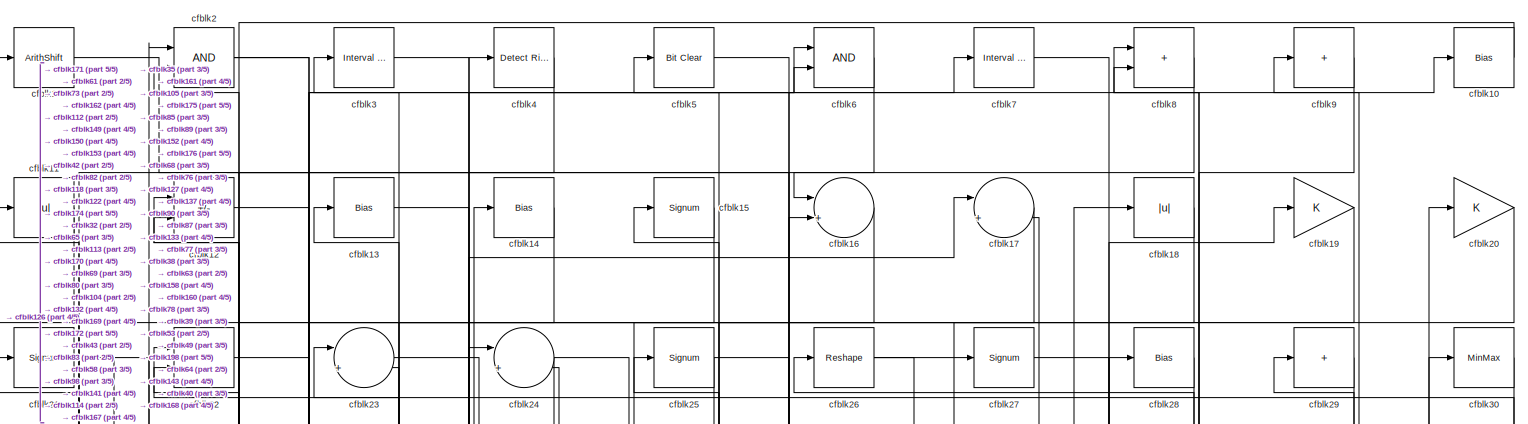
[diagram: root canvas - part 1/5, full width, top band]
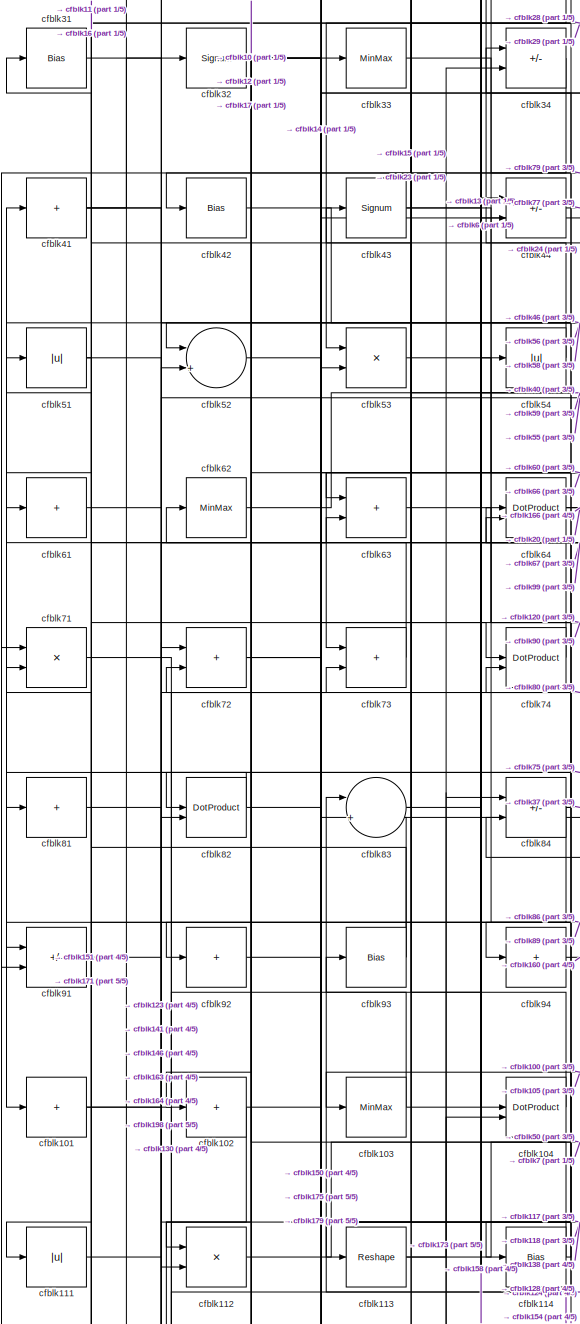
[diagram: root canvas - part 2/5, middle left region]
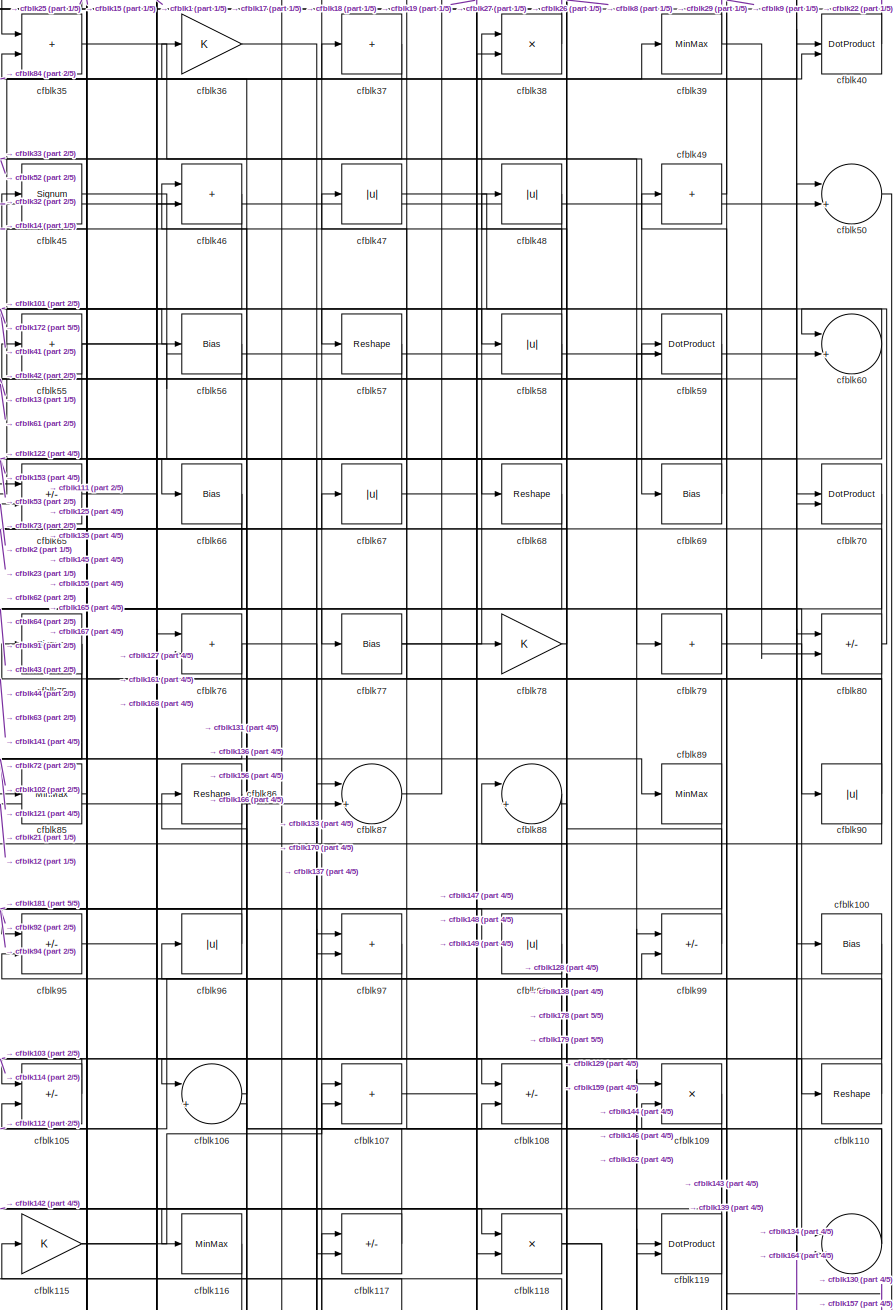
[diagram: root canvas - part 3/5, middle right region]
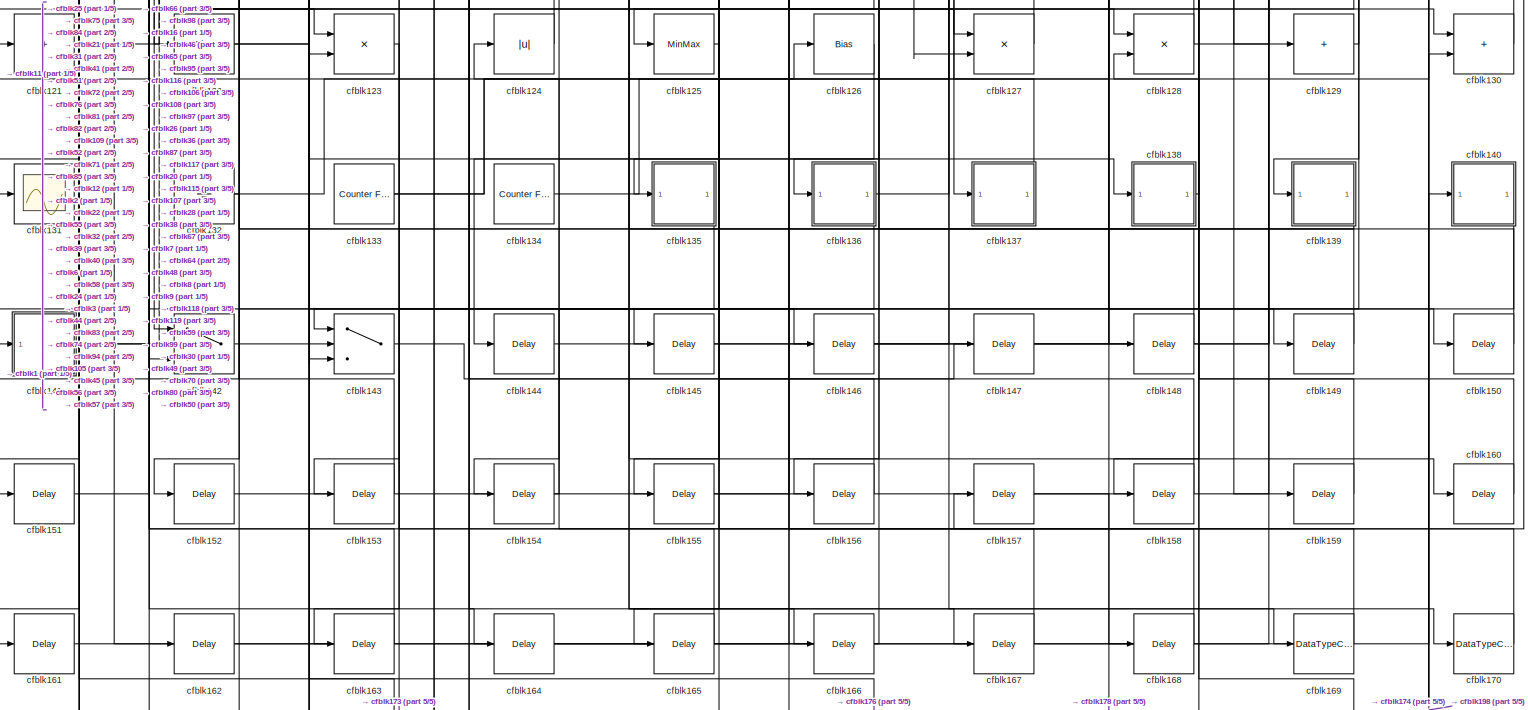
[diagram: root canvas - part 4/5, full width, bottom band]
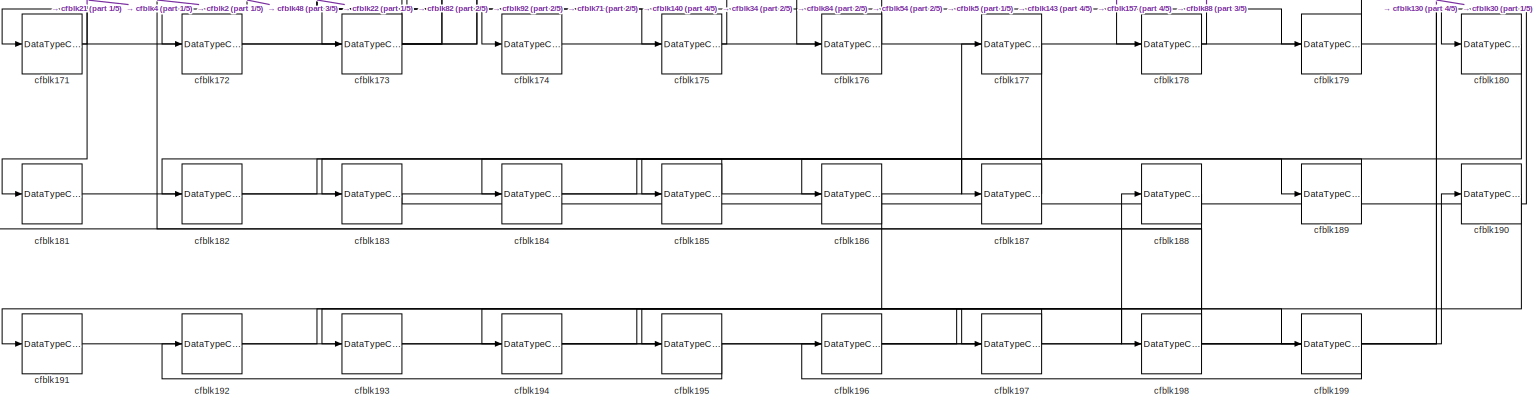
[diagram: root canvas - part 5/5, full width, bottom band]
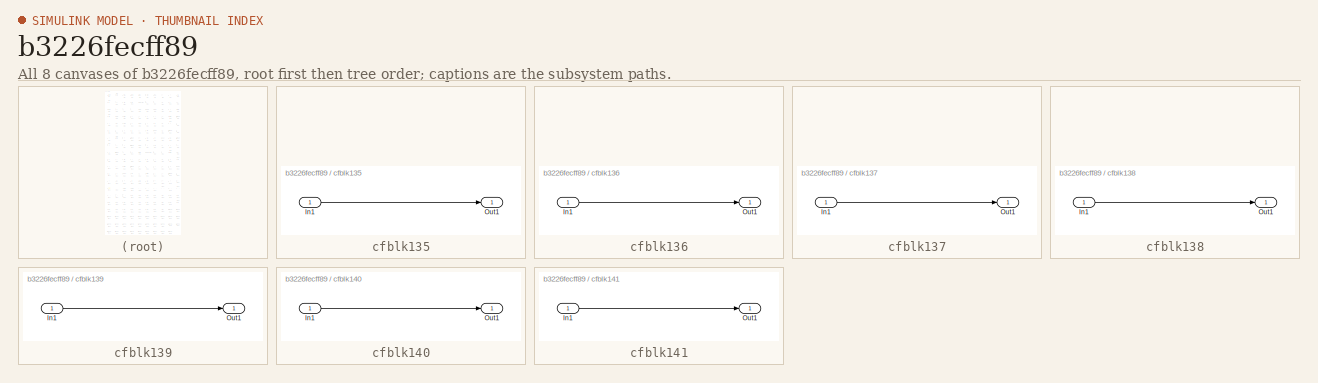
[diagram: thumbnail index - all 8 canvases of the model, root first then tree order]
MODEL slx_b3226fecff89
KIND model
CONFIG AbsTol = auto
CONFIG EnableMultiTasking = off
CONFIG FixedStep = auto
CONFIG MaxStep = auto
CONFIG MinStep = auto
CONFIG RelTol = 1e-3
CONFIG SampleTimeConstraint = Unconstrained
CONFIG SolverName = VariableStepAuto
CONFIG StartTime = 0.0
CONFIG StopTime = 10.0
BLOCK [ArithShift] cfblk1
  BitShiftNumber = 8
  InputPortMap = u0
BLOCK [Bias] cfblk10
  Bias = 0.0
  SaturateOnIntegerOverflow = off
BLOCK [Bias] cfblk100
  Bias = 0.0
  SaturateOnIntegerOverflow = off
BLOCK [Sum] cfblk101
  IconShape = rectangular
  Inputs = +
BLOCK [Sum] cfblk102
  IconShape = rectangular
  Inputs = +
BLOCK [MinMax] cfblk103
BLOCK [DotProduct] cfblk104
  OutDataTypeStr = Inherit: Inherit via internal rule
BLOCK [Sum] cfblk105
  IconShape = rectangular
  Inputs = +-
BLOCK [Sum] cfblk106
  Inputs = |++
BLOCK [Sum] cfblk107
  IconShape = rectangular
BLOCK [Sum] cfblk108
  IconShape = rectangular
  Inputs = +-
BLOCK [Product] cfblk109
  Inputs = */
  RndMeth = Zero
  SaturateOnIntegerOverflow = on
BLOCK [Abs] cfblk11
  SaturateOnIntegerOverflow = off
BLOCK [Reshape] cfblk110
BLOCK [Abs] cfblk111
  SaturateOnIntegerOverflow = off
BLOCK [Product] cfblk112
  Inputs = */
  RndMeth = Zero
  SaturateOnIntegerOverflow = on
BLOCK [Reshape] cfblk113
BLOCK [Bias] cfblk114
  Bias = 0.0
  SaturateOnIntegerOverflow = off
BLOCK [Gain] cfblk115
BLOCK [MinMax] cfblk116
BLOCK [Sum] cfblk117
  IconShape = rectangular
  Inputs = +-
BLOCK [Product] cfblk118
  Inputs = */
  RndMeth = Zero
  SaturateOnIntegerOverflow = on
BLOCK [DotProduct] cfblk119
  OutDataTypeStr = Inherit: Inherit via internal rule
BLOCK [Sum] cfblk12
  IconShape = rectangular
  Inputs = +-
BLOCK [Sum] cfblk120
  Inputs = |++
BLOCK [Sum] cfblk121
  IconShape = rectangular
  Inputs = +
BLOCK [Bias] cfblk122
  Bias = 0.0
  SaturateOnIntegerOverflow = off
BLOCK [Product] cfblk123
  Inputs = */
  RndMeth = Zero
  SaturateOnIntegerOverflow = on
BLOCK [Abs] cfblk124
  SaturateOnIntegerOverflow = off
BLOCK [MinMax] cfblk125
BLOCK [Bias] cfblk126
  Bias = 0.0
  SaturateOnIntegerOverflow = off
BLOCK [Product] cfblk127
  Inputs = */
  RndMeth = Zero
  SaturateOnIntegerOverflow = on
BLOCK [Product] cfblk128
  Inputs = */
  RndMeth = Zero
  SaturateOnIntegerOverflow = on
BLOCK [Sum] cfblk129
  IconShape = rectangular
  Inputs = +
BLOCK [Bias] cfblk13
  Bias = 0.0
  SaturateOnIntegerOverflow = off
BLOCK [Sum] cfblk130
  IconShape = rectangular
BLOCK [Scope] cfblk131
  Floating = off
  NumInputPorts = 1
  ScopeSpecificationString = Simulink.scopes.TimeScopeBlockCfg('CurrentConfiguration', extmgr.ConfigurationSet(extmgr.Configuration('Core','General UI',true),extmgr.Configuration('Core','Source UI',true),extmgr.Configuration('Sources','WiredSimulink',true,'DataLoggingVariableName','ScopeData2','DataLoggingSaveFormat','Array','DataLoggingLimitDataPoints',true,'DataLoggingDecimation','1'),extmgr.Configuration('Visuals','Time Do...<+868ch>
BLOCK [Ground] cfblk132
BLOCK [Reference] cfblk133  REF=hdlsllib/Sources/Counter
Free-Running
  SourceBlock = hdlsllib/Sources/Counter\nFree-Running
  SourceType = Counter Free-Running
BLOCK [Reference] cfblk134  REF=hdlsllib/Sources/Counter
Free-Running
  SourceBlock = hdlsllib/Sources/Counter\nFree-Running
  SourceType = Counter Free-Running
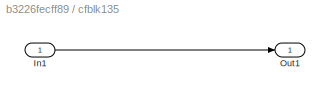
BLOCK [SubSystem] cfblk135
  LibrarySourceBlock = hdlsllib/Ports &\nSubsystems/Subsystem
BLOCK [Inport] cfblk135/In1
BLOCK [Outport] cfblk135/Out1
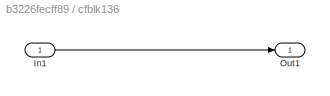
BLOCK [SubSystem] cfblk136
  LibrarySourceBlock = hdlsllib/Ports &\nSubsystems/Subsystem
BLOCK [Inport] cfblk136/In1
BLOCK [Outport] cfblk136/Out1
BLOCK [SubSystem] cfblk137
  LibrarySourceBlock = hdlsllib/Ports &\nSubsystems/Subsystem
BLOCK [Inport] cfblk137/In1
BLOCK [Outport] cfblk137/Out1
BLOCK [SubSystem] cfblk138
  LibrarySourceBlock = hdlsllib/Ports &\nSubsystems/Subsystem
BLOCK [Inport] cfblk138/In1
BLOCK [Outport] cfblk138/Out1
BLOCK [SubSystem] cfblk139
  LibrarySourceBlock = hdlsllib/Ports &\nSubsystems/Subsystem
BLOCK [Inport] cfblk139/In1
BLOCK [Outport] cfblk139/Out1
BLOCK [Bias] cfblk14
  Bias = 0.0
  SaturateOnIntegerOverflow = off
BLOCK [SubSystem] cfblk140
  LibrarySourceBlock = hdlsllib/Ports &\nSubsystems/Subsystem
BLOCK [Inport] cfblk140/In1
BLOCK [Outport] cfblk140/Out1
BLOCK [SubSystem] cfblk141
  LibrarySourceBlock = hdlsllib/Ports &\nSubsystems/Subsystem
BLOCK [Inport] cfblk141/In1
BLOCK [Outport] cfblk141/Out1
BLOCK [Switch] cfblk142
  InputSameDT = off
  SaturateOnIntegerOverflow = off
BLOCK [Switch] cfblk143
  InputSameDT = off
  SaturateOnIntegerOverflow = off
BLOCK [Delay] cfblk144
  InputPortMap = u0
  SampleTime = 1
BLOCK [Delay] cfblk145
  InputPortMap = u0
  SampleTime = 1
BLOCK [Delay] cfblk146
  InputPortMap = u0
  SampleTime = 1
BLOCK [Delay] cfblk147
  InputPortMap = u0
  SampleTime = 1
BLOCK [Delay] cfblk148
  InputPortMap = u0
  SampleTime = 1
BLOCK [Delay] cfblk149
  InputPortMap = u0
  SampleTime = 1
BLOCK [Signum] cfblk15
BLOCK [Delay] cfblk150
  InputPortMap = u0
  SampleTime = 1
BLOCK [Delay] cfblk151
  InputPortMap = u0
  SampleTime = 1
BLOCK [Delay] cfblk152
  InputPortMap = u0
  SampleTime = 1
BLOCK [Delay] cfblk153
  InputPortMap = u0
  SampleTime = 1
BLOCK [Delay] cfblk154
  InputPortMap = u0
  SampleTime = 1
BLOCK [Delay] cfblk155
  InputPortMap = u0
  SampleTime = 1
BLOCK [Delay] cfblk156
  InputPortMap = u0
  SampleTime = 1
BLOCK [Delay] cfblk157
  InputPortMap = u0
  SampleTime = 1
BLOCK [Delay] cfblk158
  InputPortMap = u0
  SampleTime = 1
BLOCK [Delay] cfblk159
  InputPortMap = u0
  SampleTime = 1
BLOCK [Sum] cfblk16
  Inputs = |++
BLOCK [Delay] cfblk160
  InputPortMap = u0
  SampleTime = 1
BLOCK [Delay] cfblk161
  InputPortMap = u0
  SampleTime = 1
BLOCK [Delay] cfblk162
  InputPortMap = u0
  SampleTime = 1
BLOCK [Delay] cfblk163
  InputPortMap = u0
  SampleTime = 1
BLOCK [Delay] cfblk164
  InputPortMap = u0
  SampleTime = 1
BLOCK [Delay] cfblk165
  InputPortMap = u0
  SampleTime = 1
BLOCK [Delay] cfblk166
  InputPortMap = u0
  SampleTime = 1
BLOCK [Delay] cfblk167
  InputPortMap = u0
  SampleTime = 1
BLOCK [Delay] cfblk168
  InputPortMap = u0
  SampleTime = 1
BLOCK [DataTypeConversion] cfblk169
  OutDataTypeStr = uint8
  RndMeth = Floor
  SaturateOnIntegerOverflow = off
BLOCK [Sum] cfblk17
  Inputs = |++
BLOCK [DataTypeConversion] cfblk170
  OutDataTypeStr = uint8
  RndMeth = Floor
  SaturateOnIntegerOverflow = off
BLOCK [DataTypeConversion] cfblk171
  RndMeth = Floor
  SaturateOnIntegerOverflow = off
BLOCK [DataTypeConversion] cfblk172
  OutDataTypeStr = uint8
  RndMeth = Floor
  SaturateOnIntegerOverflow = off
BLOCK [DataTypeConversion] cfblk173
  RndMeth = Floor
  SaturateOnIntegerOverflow = off
BLOCK [DataTypeConversion] cfblk174
  OutDataTypeStr = uint8
  RndMeth = Floor
  SaturateOnIntegerOverflow = off
BLOCK [DataTypeConversion] cfblk175
  OutDataTypeStr = boolean
  RndMeth = Floor
  SaturateOnIntegerOverflow = off
BLOCK [DataTypeConversion] cfblk176
  OutDataTypeStr = uint8
  RndMeth = Floor
  SaturateOnIntegerOverflow = off
BLOCK [DataTypeConversion] cfblk177
  RndMeth = Floor
  SaturateOnIntegerOverflow = off
BLOCK [DataTypeConversion] cfblk178
  OutDataTypeStr = uint8
  RndMeth = Floor
  SaturateOnIntegerOverflow = off
BLOCK [DataTypeConversion] cfblk179
  OutDataTypeStr = uint8
  RndMeth = Floor
  SaturateOnIntegerOverflow = off
BLOCK [Abs] cfblk18
  SaturateOnIntegerOverflow = off
BLOCK [DataTypeConversion] cfblk180
  RndMeth = Floor
  SaturateOnIntegerOverflow = off
BLOCK [DataTypeConversion] cfblk181
  OutDataTypeStr = uint8
  RndMeth = Floor
  SaturateOnIntegerOverflow = off
BLOCK [DataTypeConversion] cfblk182
  RndMeth = Floor
  SaturateOnIntegerOverflow = off
BLOCK [DataTypeConversion] cfblk183
  OutDataTypeStr = uint8
  RndMeth = Floor
  SaturateOnIntegerOverflow = off
BLOCK [DataTypeConversion] cfblk184
  RndMeth = Floor
  SaturateOnIntegerOverflow = off
BLOCK [DataTypeConversion] cfblk185
  OutDataTypeStr = uint8
  RndMeth = Floor
  SaturateOnIntegerOverflow = off
BLOCK [DataTypeConversion] cfblk186
  RndMeth = Floor
  SaturateOnIntegerOverflow = off
BLOCK [DataTypeConversion] cfblk187
  OutDataTypeStr = uint8
  RndMeth = Floor
  SaturateOnIntegerOverflow = off
BLOCK [DataTypeConversion] cfblk188
  RndMeth = Floor
  SaturateOnIntegerOverflow = off
BLOCK [DataTypeConversion] cfblk189
  OutDataTypeStr = uint8
  RndMeth = Floor
  SaturateOnIntegerOverflow = off
BLOCK [Gain] cfblk19
BLOCK [DataTypeConversion] cfblk190
  RndMeth = Floor
  SaturateOnIntegerOverflow = off
BLOCK [DataTypeConversion] cfblk191
  OutDataTypeStr = uint8
  RndMeth = Floor
  SaturateOnIntegerOverflow = off
BLOCK [DataTypeConversion] cfblk192
  RndMeth = Floor
  SaturateOnIntegerOverflow = off
BLOCK [DataTypeConversion] cfblk193
  OutDataTypeStr = uint8
  RndMeth = Floor
  SaturateOnIntegerOverflow = off
BLOCK [DataTypeConversion] cfblk194
  RndMeth = Floor
  SaturateOnIntegerOverflow = off
BLOCK [DataTypeConversion] cfblk195
  OutDataTypeStr = uint8
  RndMeth = Floor
  SaturateOnIntegerOverflow = off
BLOCK [DataTypeConversion] cfblk196
  RndMeth = Floor
  SaturateOnIntegerOverflow = off
BLOCK [DataTypeConversion] cfblk197
  OutDataTypeStr = uint8
  RndMeth = Floor
  SaturateOnIntegerOverflow = off
BLOCK [DataTypeConversion] cfblk198
  RndMeth = Floor
  SaturateOnIntegerOverflow = off
BLOCK [DataTypeConversion] cfblk199
  OutDataTypeStr = uint8
  RndMeth = Floor
  SaturateOnIntegerOverflow = off
BLOCK [Logic] cfblk2
  AllPortsSameDT = off
  OutDataTypeStr = boolean
BLOCK [Gain] cfblk20
BLOCK [Signum] cfblk21
BLOCK [Product] cfblk22
  Inputs = */
  RndMeth = Zero
  SaturateOnIntegerOverflow = on
BLOCK [Sum] cfblk23
  Inputs = |++
BLOCK [Sum] cfblk24
  Inputs = |++
BLOCK [Signum] cfblk25
BLOCK [Reshape] cfblk26
BLOCK [Signum] cfblk27
BLOCK [Bias] cfblk28
  Bias = 0.0
  SaturateOnIntegerOverflow = off
BLOCK [Sum] cfblk29
  IconShape = rectangular
  Inputs = +
BLOCK [Reference] cfblk3  REF=hdlsllib/Logic and Bit
Operations/Interval Test
  SourceBlock = hdlsllib/Logic and Bit\nOperations/Interval Test
  SourceType = Interval Test
BLOCK [MinMax] cfblk30
BLOCK [Bias] cfblk31
  Bias = 0.0
  SaturateOnIntegerOverflow = off
BLOCK [Signum] cfblk32
BLOCK [MinMax] cfblk33
BLOCK [Sum] cfblk34
  IconShape = rectangular
  Inputs = +-
BLOCK [Sum] cfblk35
  IconShape = rectangular
BLOCK [Gain] cfblk36
BLOCK [Sum] cfblk37
  IconShape = rectangular
  Inputs = +
BLOCK [Product] cfblk38
  Inputs = */
  RndMeth = Zero
  SaturateOnIntegerOverflow = on
BLOCK [MinMax] cfblk39
BLOCK [Reference] cfblk4  REF=hdlsllib/Logic and Bit
Operations/Detect Rise
Positive
  SourceBlock = hdlsllib/Logic and Bit\nOperations/Detect Rise\nPositive
  SourceType = Detect Rise Positive
BLOCK [DotProduct] cfblk40
  OutDataTypeStr = Inherit: Inherit via internal rule
BLOCK [Sum] cfblk41
  IconShape = rectangular
  Inputs = +
BLOCK [Bias] cfblk42
  Bias = 0.0
  SaturateOnIntegerOverflow = off
BLOCK [Signum] cfblk43
BLOCK [Sum] cfblk44
  IconShape = rectangular
  Inputs = +-
BLOCK [Signum] cfblk45
BLOCK [Sum] cfblk46
  IconShape = rectangular
BLOCK [Abs] cfblk47
  SaturateOnIntegerOverflow = off
BLOCK [Abs] cfblk48
  SaturateOnIntegerOverflow = off
BLOCK [Sum] cfblk49
  IconShape = rectangular
  Inputs = +
BLOCK [Reference] cfblk5  REF=simulink/Logic and Bit
Operations/Bit Clear
  LibrarySourceBlock = hdlsllib/Logic and Bit\nOperations/Bit Clear
  SourceBlock = simulink/Logic and Bit\nOperations/Bit Clear
  SourceType = Bit Clear
BLOCK [Sum] cfblk50
  Inputs = |++
BLOCK [Abs] cfblk51
  SaturateOnIntegerOverflow = off
BLOCK [Sum] cfblk52
  Inputs = |++
BLOCK [Product] cfblk53
  Inputs = */
  RndMeth = Zero
  SaturateOnIntegerOverflow = on
BLOCK [Abs] cfblk54
  SaturateOnIntegerOverflow = off
BLOCK [Sum] cfblk55
  IconShape = rectangular
  Inputs = +
BLOCK [Bias] cfblk56
  Bias = 0.0
  SaturateOnIntegerOverflow = off
BLOCK [Reshape] cfblk57
BLOCK [Abs] cfblk58
  SaturateOnIntegerOverflow = off
BLOCK [DotProduct] cfblk59
  OutDataTypeStr = Inherit: Inherit via internal rule
BLOCK [Logic] cfblk6
  AllPortsSameDT = off
  OutDataTypeStr = boolean
BLOCK [Sum] cfblk60
  Inputs = |++
BLOCK [Sum] cfblk61
  IconShape = rectangular
  Inputs = +
BLOCK [MinMax] cfblk62
BLOCK [Sum] cfblk63
  IconShape = rectangular
BLOCK [DotProduct] cfblk64
  OutDataTypeStr = Inherit: Inherit via internal rule
BLOCK [Sum] cfblk65
  IconShape = rectangular
  Inputs = +-
BLOCK [Bias] cfblk66
  Bias = 0.0
  SaturateOnIntegerOverflow = off
BLOCK [Abs] cfblk67
  SaturateOnIntegerOverflow = off
BLOCK [Reshape] cfblk68
BLOCK [Bias] cfblk69
  Bias = 0.0
  SaturateOnIntegerOverflow = off
BLOCK [Reference] cfblk7  REF=hdlsllib/Logic and Bit
Operations/Interval Test
  SourceBlock = hdlsllib/Logic and Bit\nOperations/Interval Test
  SourceType = Interval Test
BLOCK [DotProduct] cfblk70
  OutDataTypeStr = Inherit: Inherit via internal rule
BLOCK [Product] cfblk71
  Inputs = */
  RndMeth = Zero
  SaturateOnIntegerOverflow = on
BLOCK [Sum] cfblk72
  IconShape = rectangular
BLOCK [Sum] cfblk73
  IconShape = rectangular
BLOCK [DotProduct] cfblk74
  OutDataTypeStr = Inherit: Inherit via internal rule
BLOCK [Signum] cfblk75
BLOCK [Sum] cfblk76
  IconShape = rectangular
BLOCK [Bias] cfblk77
  Bias = 0.0
  SaturateOnIntegerOverflow = off
BLOCK [Gain] cfblk78
BLOCK [Sum] cfblk79
  IconShape = rectangular
  Inputs = +
BLOCK [Sum] cfblk8
  IconShape = rectangular
BLOCK [Sum] cfblk80
  IconShape = rectangular
  Inputs = +-
BLOCK [Sum] cfblk81
  IconShape = rectangular
  Inputs = +
BLOCK [DotProduct] cfblk82
  OutDataTypeStr = Inherit: Inherit via internal rule
BLOCK [Sum] cfblk83
  Inputs = |++
BLOCK [Sum] cfblk84
  IconShape = rectangular
  Inputs = +-
BLOCK [MinMax] cfblk85
BLOCK [Reshape] cfblk86
BLOCK [Sum] cfblk87
  Inputs = |++
BLOCK [Sum] cfblk88
  Inputs = |++
BLOCK [MinMax] cfblk89
BLOCK [Sum] cfblk9
  IconShape = rectangular
  Inputs = +
BLOCK [Abs] cfblk90
  SaturateOnIntegerOverflow = off
BLOCK [Sum] cfblk91
  IconShape = rectangular
  Inputs = +-
BLOCK [Sum] cfblk92
  IconShape = rectangular
  Inputs = +
BLOCK [Bias] cfblk93
  Bias = 0.0
  SaturateOnIntegerOverflow = off
BLOCK [Sum] cfblk94
  IconShape = rectangular
  Inputs = +
BLOCK [Sum] cfblk95
  IconShape = rectangular
  Inputs = +-
BLOCK [Abs] cfblk96
  SaturateOnIntegerOverflow = off
BLOCK [Sum] cfblk97
  IconShape = rectangular
BLOCK [Abs] cfblk98
  SaturateOnIntegerOverflow = off
BLOCK [Sum] cfblk99
  IconShape = rectangular
  Inputs = +-
LINE cfblk100:1 -> cfblk114:1
NET cfblk101:1 -> cfblk44:2, cfblk63:2
NET cfblk102:1 -> cfblk112:2, cfblk33:1
NET cfblk103:1 -> cfblk59:1, cfblk93:1
LINE cfblk104:1 -> cfblk23:1
LINE cfblk105:1 -> cfblk103:1
LINE cfblk106:1 -> cfblk46:1
LINE cfblk107:1 -> cfblk148:1
NET cfblk108:1 -> cfblk156:1, cfblk35:2
LINE cfblk109:1 -> cfblk142:1
LINE cfblk10:1 -> cfblk42:1
LINE cfblk110:1 -> cfblk96:1
LINE cfblk111:1 -> cfblk73:2
LINE cfblk112:1 -> cfblk50:1
NET cfblk113:1 -> cfblk104:2, cfblk7:1
NET cfblk114:1 -> cfblk12:1, cfblk24:2
NET cfblk115:1 -> cfblk107:1, cfblk99:2
LINE cfblk116:1 -> cfblk131:1
LINE cfblk117:1 -> cfblk86:1
NET cfblk118:1 -> cfblk129:1, cfblk159:1
NET cfblk119:1 -> cfblk143:3, cfblk47:1
LINE cfblk11:1 -> cfblk126:1
NET cfblk120:1 -> cfblk107:2, cfblk64:1
LINE cfblk121:1 -> cfblk85:1
NET cfblk122:1 -> cfblk40:2, cfblk6:1
LINE cfblk123:1 -> cfblk163:1
LINE cfblk124:1 -> cfblk83:1
LINE cfblk125:1 -> cfblk45:1
LINE cfblk126:1 -> cfblk144:1
LINE cfblk127:1 -> cfblk115:1
NET cfblk128:1 -> cfblk119:1, cfblk64:2
LINE cfblk129:1 -> cfblk49:1
LINE cfblk12:1 -> cfblk87:2
LINE cfblk130:1 -> cfblk109:2
NET cfblk132:1 -> cfblk1:1, cfblk24:1
NET cfblk133:1 -> cfblk28:1, cfblk97:1
LINE cfblk134:1 -> cfblk70:2
LINE cfblk135/In1:1 -> cfblk135/Out1:1
LINE cfblk135:1 -> cfblk152:1
LINE cfblk136/In1:1 -> cfblk136/Out1:1
NET cfblk136:1 -> cfblk108:2, cfblk154:1
LINE cfblk137/In1:1 -> cfblk137/Out1:1
LINE cfblk137:1 -> cfblk117:1
LINE cfblk138/In1:1 -> cfblk138/Out1:1
LINE cfblk138:1 -> cfblk48:1
LINE cfblk139/In1:1 -> cfblk139/Out1:1
LINE cfblk139:1 -> cfblk125:1
LINE cfblk13:1 -> cfblk104:1
LINE cfblk140/In1:1 -> cfblk140/Out1:1
LINE cfblk140:1 -> cfblk173:1
LINE cfblk141/In1:1 -> cfblk141/Out1:1
NET cfblk141:1 -> cfblk52:2, cfblk75:1
LINE cfblk142:1 -> cfblk39:1
LINE cfblk143:1 -> cfblk147:1
LINE cfblk144:1 -> cfblk119:2
LINE cfblk145:1 -> cfblk87:1
LINE cfblk146:1 -> cfblk59:2
LINE cfblk147:1 -> cfblk38:2
LINE cfblk148:1 -> cfblk65:1
LINE cfblk149:1 -> cfblk12:2
LINE cfblk14:1 -> cfblk53:2
LINE cfblk150:1 -> cfblk22:2
LINE cfblk151:1 -> cfblk82:2
LINE cfblk152:1 -> cfblk16:2
LINE cfblk153:1 -> cfblk2:2
LINE cfblk154:1 -> cfblk74:2
LINE cfblk155:1 -> cfblk109:1
LINE cfblk156:1 -> cfblk105:2
LINE cfblk157:1 -> cfblk178:1
LINE cfblk158:1 -> cfblk44:1
LINE cfblk159:1 -> cfblk128:2
LINE cfblk15:1 -> cfblk113:1
LINE cfblk160:1 -> cfblk8:2
LINE cfblk161:1 -> cfblk46:2
LINE cfblk162:1 -> cfblk99:1
LINE cfblk163:1 -> cfblk72:1
LINE cfblk164:1 -> cfblk80:1
LINE cfblk165:1 -> cfblk142:2
LINE cfblk166:1 -> cfblk106:2
LINE cfblk167:1 -> cfblk95:2
LINE cfblk168:1 -> cfblk76:1
LINE cfblk169:1 -> cfblk124:1
LINE cfblk16:1 -> cfblk61:1
LINE cfblk170:1 -> cfblk3:1
NET cfblk171:1 -> cfblk21:1, cfblk54:1
LINE cfblk172:1 -> cfblk4:1
NET cfblk173:1 -> cfblk34:2, cfblk71:2, cfblk84:1
LINE cfblk174:1 -> cfblk140:1
LINE cfblk175:1 -> cfblk5:1
LINE cfblk176:1 -> cfblk143:2
LINE cfblk177:1 -> cfblk183:1
LINE cfblk178:1 -> cfblk88:1
LINE cfblk179:1 -> cfblk88:2
LINE cfblk17:1 -> cfblk112:1
LINE cfblk180:1 -> cfblk185:1
LINE cfblk181:1 -> cfblk177:1
LINE cfblk182:1 -> cfblk187:1
LINE cfblk183:1 -> cfblk180:1
LINE cfblk184:1 -> cfblk189:1
LINE cfblk185:1 -> cfblk182:1
LINE cfblk186:1 -> cfblk191:1
LINE cfblk187:1 -> cfblk184:1
LINE cfblk188:1 -> cfblk193:1
LINE cfblk189:1 -> cfblk186:1
LINE cfblk18:1 -> cfblk105:1
LINE cfblk190:1 -> cfblk195:1
LINE cfblk191:1 -> cfblk188:1
LINE cfblk192:1 -> cfblk197:1
LINE cfblk193:1 -> cfblk190:1
LINE cfblk194:1 -> cfblk199:1
LINE cfblk195:1 -> cfblk192:1
LINE cfblk196:1 -> cfblk198:1
LINE cfblk197:1 -> cfblk194:1
NET cfblk198:1 -> cfblk130:2, cfblk2:1, cfblk30:1, cfblk71:1
LINE cfblk199:1 -> cfblk196:1
LINE cfblk19:1 -> cfblk35:1
LINE cfblk1:1 -> cfblk76:2
LINE cfblk20:1 -> cfblk137:1
NET cfblk21:1 -> cfblk162:1, cfblk89:1
LINE cfblk22:1 -> cfblk174:1
LINE cfblk23:1 -> cfblk98:1
NET cfblk24:1 -> cfblk141:1, cfblk167:1
NET cfblk25:1 -> cfblk161:1, cfblk68:1
NET cfblk26:1 -> cfblk127:2, cfblk27:1
LINE cfblk27:1 -> cfblk78:1
LINE cfblk28:1 -> cfblk63:1
LINE cfblk29:1 -> cfblk53:1
NET cfblk2:1 -> cfblk118:2, cfblk65:2
LINE cfblk30:1 -> cfblk143:1
LINE cfblk31:1 -> cfblk123:1
NET cfblk32:1 -> cfblk10:1, cfblk118:1, cfblk138:1, cfblk50:2
LINE cfblk33:1 -> cfblk79:1
LINE cfblk34:1 -> cfblk91:2
LINE cfblk35:1 -> cfblk69:1
LINE cfblk36:1 -> cfblk170:1
LINE cfblk37:1 -> cfblk52:1
LINE cfblk38:1 -> cfblk26:1
NET cfblk39:1 -> cfblk29:1, cfblk80:2
LINE cfblk3:1 -> cfblk169:1
LINE cfblk40:1 -> cfblk22:1
NET cfblk41:1 -> cfblk164:1, cfblk32:1, cfblk56:1
LINE cfblk42:1 -> cfblk58:1
NET cfblk43:1 -> cfblk120:2, cfblk17:1
LINE cfblk44:1 -> cfblk77:1
LINE cfblk45:1 -> cfblk100:1
LINE cfblk46:1 -> cfblk101:1
LINE cfblk47:1 -> cfblk70:1
LINE cfblk48:1 -> cfblk172:1
LINE cfblk49:1 -> cfblk9:1
LINE cfblk4:1 -> cfblk171:1
LINE cfblk50:1 -> cfblk157:1
NET cfblk51:1 -> cfblk123:2, cfblk91:1
LINE cfblk52:1 -> cfblk150:1
LINE cfblk53:1 -> cfblk66:1
LINE cfblk54:1 -> cfblk31:1
NET cfblk55:1 -> cfblk108:1, cfblk122:1, cfblk60:2
LINE cfblk56:1 -> cfblk165:1
LINE cfblk57:1 -> cfblk145:1
NET cfblk58:1 -> cfblk14:1, cfblk153:1, cfblk97:2
LINE cfblk59:1 -> cfblk106:1
LINE cfblk5:1 -> cfblk176:1
NET cfblk60:1 -> cfblk57:1, cfblk73:1
LINE cfblk61:1 -> cfblk55:1
LINE cfblk62:1 -> cfblk40:1
LINE cfblk63:1 -> cfblk90:1
NET cfblk64:1 -> cfblk166:1, cfblk20:1
LINE cfblk65:1 -> cfblk127:1
NET cfblk66:1 -> cfblk111:1, cfblk135:1
LINE cfblk67:1 -> cfblk149:1
LINE cfblk68:1 -> cfblk116:1
LINE cfblk69:1 -> cfblk13:1
LINE cfblk6:1 -> cfblk82:1
LINE cfblk70:1 -> cfblk139:1
LINE cfblk71:1 -> cfblk130:1
NET cfblk72:1 -> cfblk117:2, cfblk74:1
LINE cfblk73:1 -> cfblk11:1
LINE cfblk74:1 -> cfblk41:1
NET cfblk75:1 -> cfblk102:1, cfblk121:1
NET cfblk76:1 -> cfblk110:1, cfblk142:3
NET cfblk77:1 -> cfblk19:1, cfblk38:1
LINE cfblk78:1 -> cfblk8:1
LINE cfblk79:1 -> cfblk120:1
LINE cfblk7:1 -> cfblk168:1
NET cfblk80:1 -> cfblk23:2, cfblk60:1, cfblk72:2
LINE cfblk81:1 -> cfblk146:1
NET cfblk82:1 -> cfblk179:1, cfblk81:1
NET cfblk83:1 -> cfblk43:1, cfblk6:2
NET cfblk84:1 -> cfblk151:1, cfblk34:1, cfblk37:1
LINE cfblk85:1 -> cfblk15:1
LINE cfblk86:1 -> cfblk92:1
LINE cfblk87:1 -> cfblk18:1
LINE cfblk88:1 -> cfblk181:1
NET cfblk89:1 -> cfblk25:1, cfblk94:1
LINE cfblk8:1 -> cfblk16:1
NET cfblk90:1 -> cfblk17:2, cfblk36:1, cfblk84:2
LINE cfblk91:1 -> cfblk67:1
LINE cfblk92:1 -> cfblk175:1
NET cfblk93:1 -> cfblk51:1, cfblk83:2
LINE cfblk94:1 -> cfblk160:1
LINE cfblk95:1 -> cfblk128:1
LINE cfblk96:1 -> cfblk95:1
LINE cfblk97:1 -> cfblk136:1
LINE cfblk98:1 -> cfblk155:1
LINE cfblk99:1 -> cfblk62:1
LINE cfblk9:1 -> cfblk158:1
note: NET lines group one-source signal fan-out (src -> all destinations, sorted); 1:1 wires keep LINE
